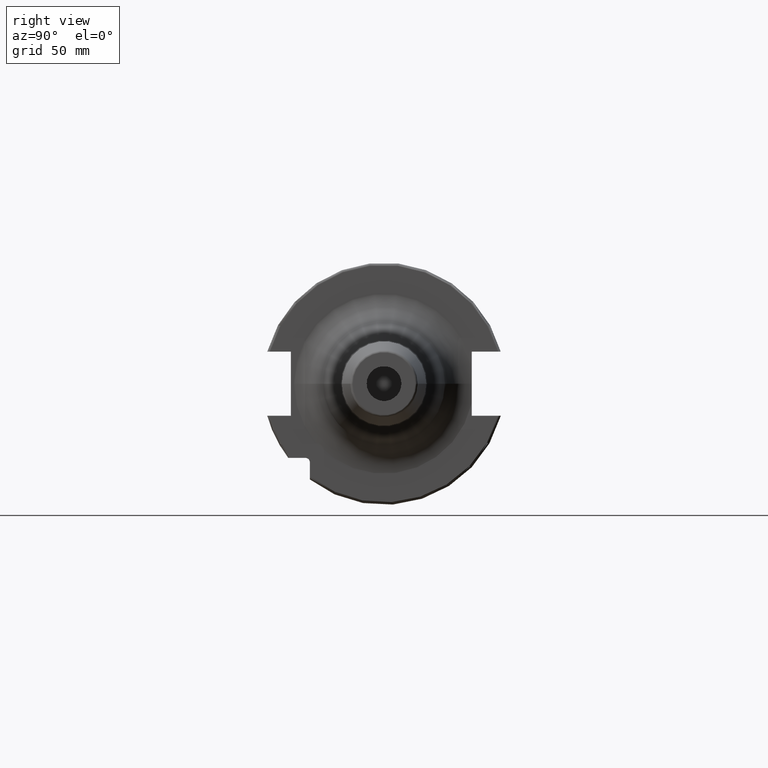
[diagram: clean part render]
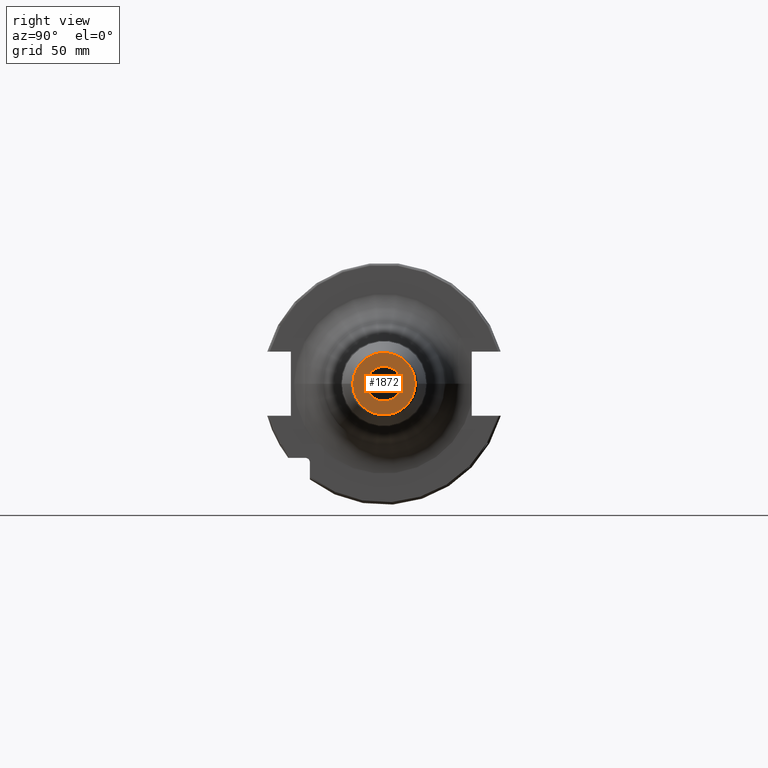
[diagram: same view with one face highlighted and labeled with its STEP entity id]
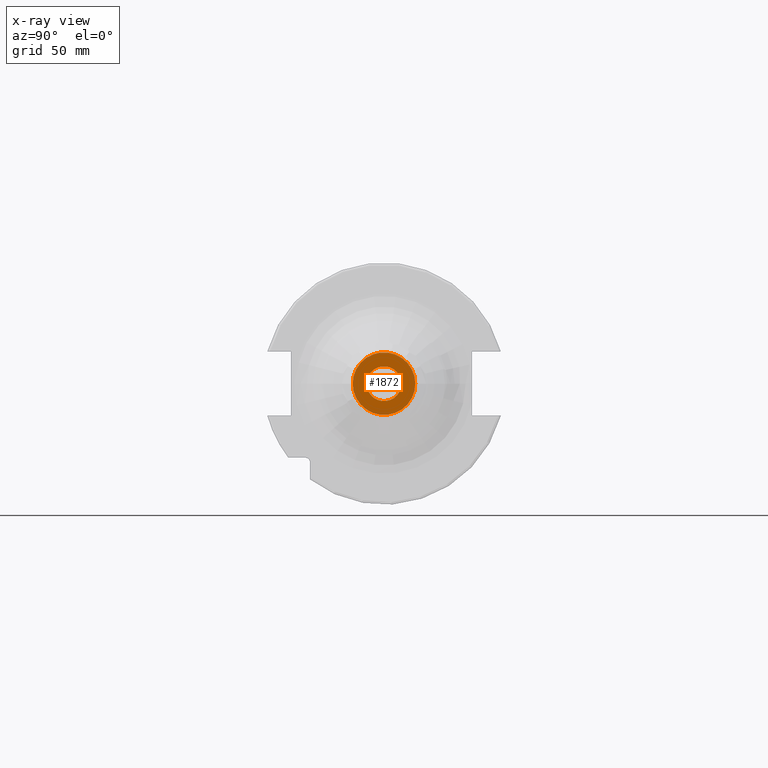
[diagram: x-ray of the same camera — body ghosted, the highlighted face saturated]
A machine part, right view. The second image highlights one B-rep face of the part: STEP entity #1872.
The next image is the same camera in x-ray: the body ghosted, the highlighted face saturated — about 0% of this face is hidden behind the body in this view.
In plain terms, the highlighted planar face has unit normal (1, 0, 0).
Its self-contained STEP definition (entity closure, byte-faithful):
#272=CARTESIAN_POINT('',(1.6E2,0.E0,0.E0));
#273=DIRECTION('',(-1.E0,0.E0,0.E0));
#274=DIRECTION('',(0.E0,1.E0,0.E0));
#275=AXIS2_PLACEMENT_3D('',#272,#273,#274);
#277=CARTESIAN_POINT('',(1.6E2,0.E0,0.E0));
#278=DIRECTION('',(-1.E0,0.E0,0.E0));
#279=DIRECTION('',(0.E0,-1.E0,0.E0));
#280=AXIS2_PLACEMENT_3D('',#277,#278,#279);
#282=CARTESIAN_POINT('',(1.6E2,0.E0,0.E0));
#283=DIRECTION('',(-1.E0,0.E0,0.E0));
#284=DIRECTION('',(0.E0,-1.E0,0.E0));
#285=AXIS2_PLACEMENT_3D('',#282,#283,#284);
#287=CARTESIAN_POINT('',(1.6E2,0.E0,0.E0));
#288=DIRECTION('',(-1.E0,0.E0,0.E0));
#289=DIRECTION('',(0.E0,1.E0,0.E0));
#290=AXIS2_PLACEMENT_3D('',#287,#288,#289);
#1478=CARTESIAN_POINT('',(1.6E2,1.257560950834E1,0.E0));
#1479=CARTESIAN_POINT('',(1.6E2,-1.257560950834E1,0.E0));
#1480=VERTEX_POINT('',#1478);
#1481=VERTEX_POINT('',#1479);
#1486=CARTESIAN_POINT('',(1.6E2,-7.E0,0.E0));
#1487=CARTESIAN_POINT('',(1.6E2,7.E0,0.E0));
#1488=VERTEX_POINT('',#1486);
#1489=VERTEX_POINT('',#1487);
#1857=CARTESIAN_POINT('',(1.6E2,0.E0,0.E0));
#1858=DIRECTION('',(1.E0,0.E0,0.E0));
#1859=DIRECTION('',(0.E0,-1.E0,0.E0));
#1860=AXIS2_PLACEMENT_3D('',#1857,#1858,#1859);
#1861=PLANE('',#1860);
#1862=ORIENTED_EDGE('',*,*,#1839,.T.);
#1863=ORIENTED_EDGE('',*,*,#1824,.T.);
#1864=EDGE_LOOP('',(#1862,#1863));
#1865=FACE_OUTER_BOUND('',#1864,.F.);
#1867=ORIENTED_EDGE('',*,*,#1866,.F.);
#1869=ORIENTED_EDGE('',*,*,#1868,.F.);
#1870=EDGE_LOOP('',(#1867,#1869));
#1871=FACE_BOUND('',#1870,.F.);
#1872=ADVANCED_FACE('',(#1865,#1871),#1861,.T.);
#276=CIRCLE('',#275,1.257560950834E1);
#281=CIRCLE('',#280,1.257560950834E1);
#286=CIRCLE('',#285,7.E0);
#291=CIRCLE('',#290,7.E0);
#1824=EDGE_CURVE('',#1481,#1480,#281,.T.);
#1839=EDGE_CURVE('',#1480,#1481,#276,.T.);
#1866=EDGE_CURVE('',#1488,#1489,#286,.T.);
#1868=EDGE_CURVE('',#1489,#1488,#291,.T.);